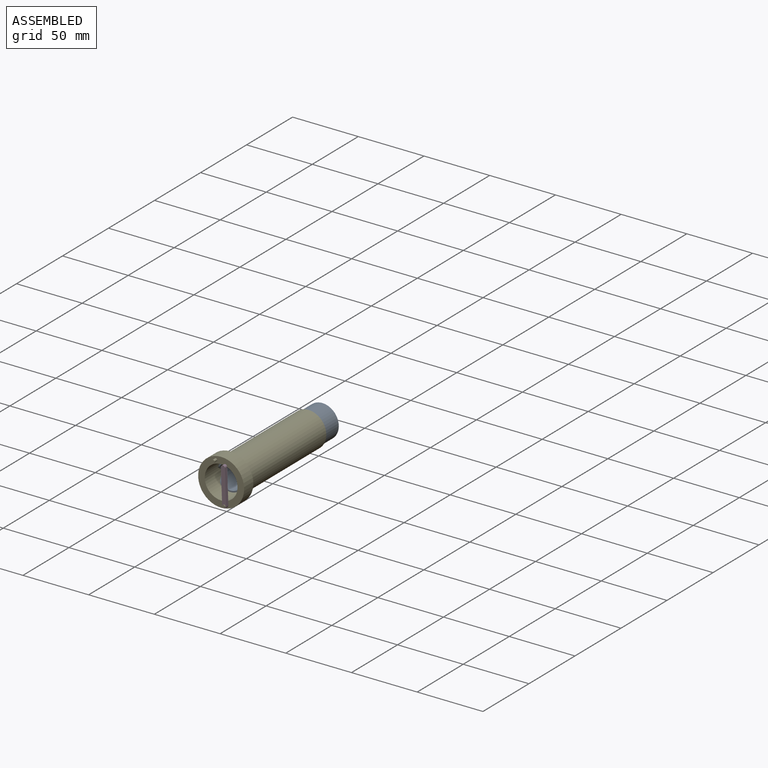
[diagram: assembled view]
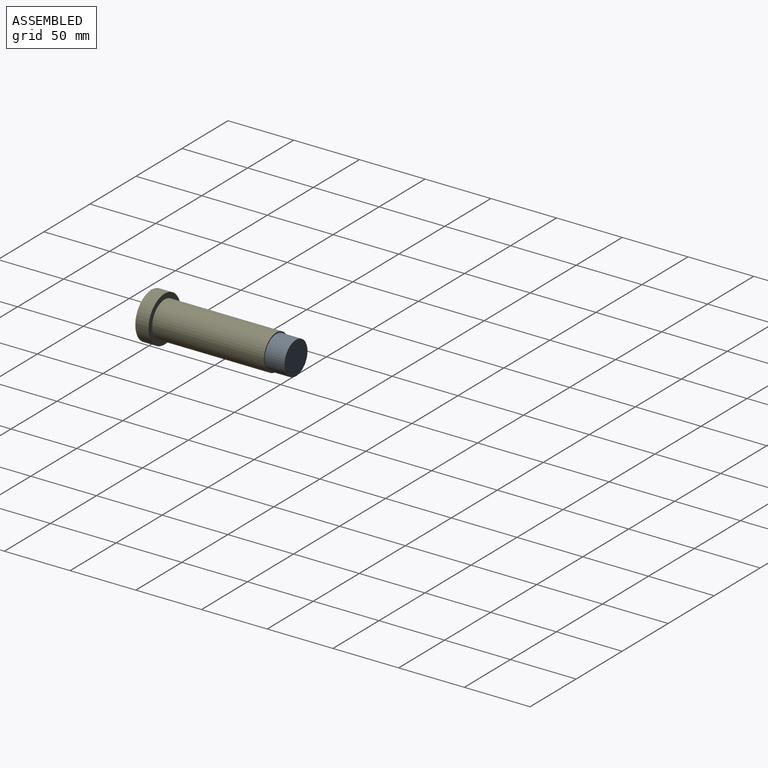
[diagram: assembled view, second angle]
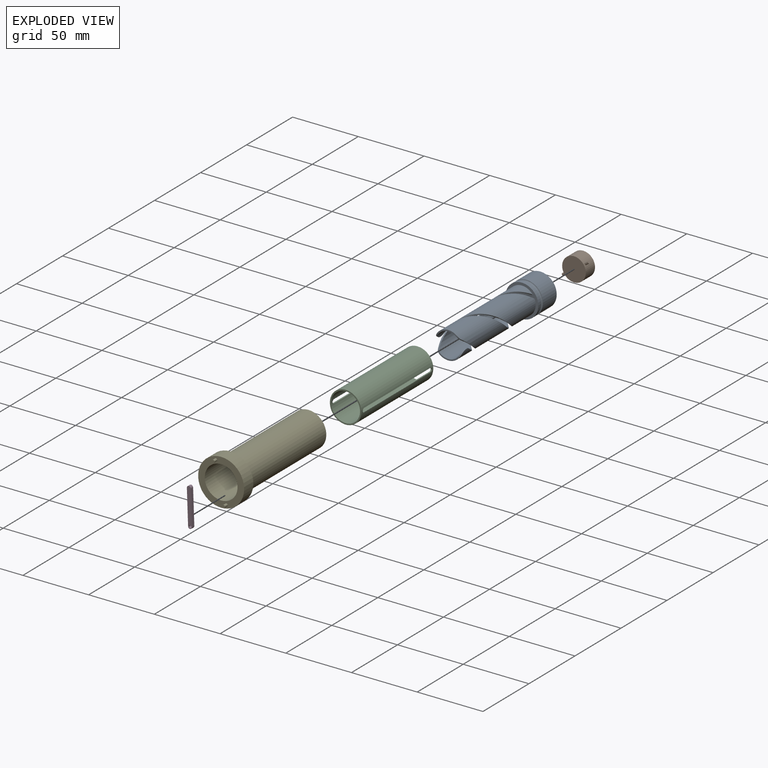
[diagram: exploded view]
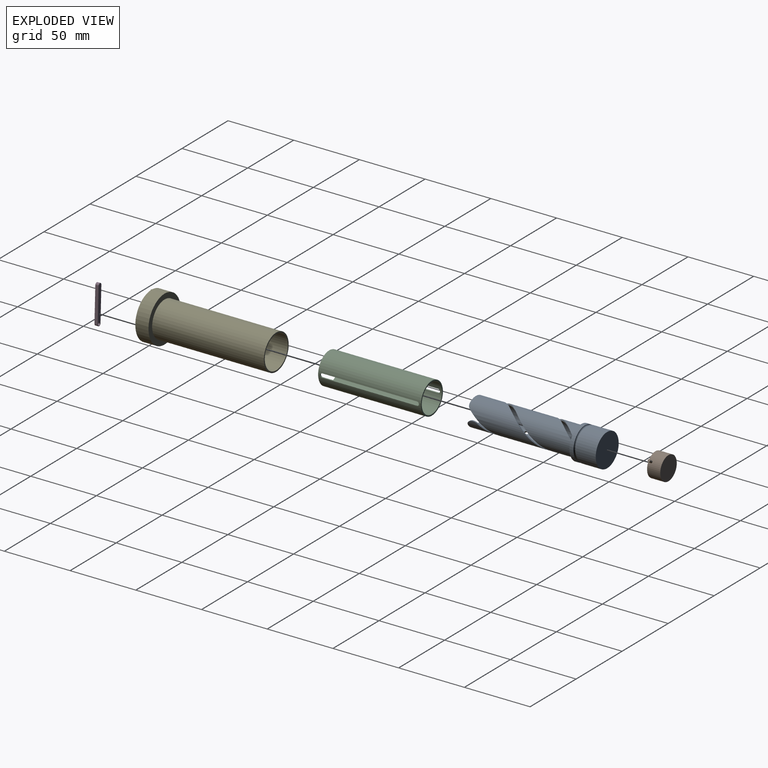
[diagram: exploded view, second angle]
ASSEMBLY  parts=5 mates=4
PART A: 19 faces, bbox 28.6x100.1x28.6 mm
  f0: cylinder r=12.5mm len=25mm, axis (0,1,0), area 235.6mm2, adj f5,f16
  f1: plane 13.69x6.47mm, normal (0,-1,0), area 15mm2, adj f6,f7,f12,f15
  f2: plane 13.69x6.47mm, normal (0,-1,0), area 15mm2, adj f3,f4,f13,f14
  f3: cylinder r=9.5mm len=80mm, axis (0,1,0), area 2121.4mm2, adj f2,f5,f9,f10,f13,f14
  f4: cylinder r=10.5mm len=80mm, axis (0,1,0), area 2371mm2, adj f2,f5,f9,f10,f13,f14
  f5: plane 25x25mm, normal (0,-1,0), area 434.1mm2, adj f0,f3,f4,f6,f7,f8,f9,f10
  f6: cylinder r=9.5mm len=80mm, axis (0,1,0), area 2121.4mm2, adj f1,f5,f8,f11,f12,f15
  f7: cylinder r=10.5mm len=80mm, axis (0,1,0), area 2371mm2, adj f1,f5,f8,f11,f12,f15
  f8: bspline ~80x25.68mm, area 100mm2, adj f5,f6,f7,f15
  f9: bspline ~74.29x25.68mm, area 92.1mm2, adj f3,f4,f5,f14
  f10: bspline ~80x25.68mm, area 100mm2, adj f3,f4,f5,f13
  f11: bspline ~74.29x25.68mm, area 92.1mm2, adj f5,f6,f7,f12
  f12: bspline ~10.95x9.57mm, area 11.5mm2, adj f1,f6,f7,f11
  f13: bspline ~4.33x4.2mm, area 5.3mm2, adj f2,f3,f4,f10
  f14: bspline ~10.95x9.57mm, area 11.5mm2, adj f2,f3,f4,f9
  f15: bspline ~4.33x4.2mm, area 5.3mm2, adj f1,f6,f7,f8
  f16: torus R=12.5mm, axis (0,-1,0), area 234.2mm2, adj f0,f18
  f17: plane 25x25mm, normal (0,1,0), area 490.9mm2, adj f18
  f18: cylinder r=12.5mm len=25mm, axis (0,1,0), area 1178.1mm2, adj f16,f17
PART B: 7 faces, bbox 20.5x10x18 mm
  f0: cylinder r=9mm len=18mm, axis (0,1,0), area 559.8mm2, adj f1,f2,f4,f5
  f1: plane 18x18mm, normal (0,-1,0), area 254.5mm2, adj f0
  f2: plane 18x18mm, normal (0,1,0), area 254.5mm2, adj f0
  f3: cylinder r=10.5mm len=1.9mm, axis (0,1,0), area 2.8mm2, adj f4
  f4: cylinder r=0.95mm len=3.58mm, axis (-0.81,0,-0.59), area 17.9mm2, adj f0,f3
  f5: cylinder r=0.95mm len=3.58mm, axis (-0.81,0,-0.59), area 17.9mm2, adj f0,f6
  f6: cylinder r=10.5mm len=1.9mm, axis (0,1,0), area 2.8mm2, adj f5
PART C: 12 faces, bbox 24x78.2x24 mm
  f0: cylinder r=11mm len=78.15mm, axis (0,1,0), area 4953mm2, adj f2,f3,f4,f5,f6,f7,f8,f9
  f1: cylinder r=12mm len=78.15mm, axis (0,1,0), area 5444.3mm2, adj f2,f3,f4,f5,f6,f7,f8,f9
  f2: plane 24x24mm, normal (0,-1,0), area 72.3mm2, adj f0,f1
  f3: plane 24x24mm, normal (0,1,0), area 72.3mm2, adj f0,f1
  f4: cylinder r=1.5mm len=3mm, axis (1,0,0), area 4.7mm2, adj f0,f1,f5,f7
  f5: plane 72.15x1.01mm, normal (0,0,1), area 72.8mm2, adj f0,f1,f4,f6
  f6: cylinder r=1.5mm len=3mm, axis (1,0,0), area 4.7mm2, adj f0,f1,f5,f7
  f7: plane 72.15x1.01mm, normal (0,0,-1), area 72.8mm2, adj f0,f1,f4,f6
  f8: plane 72.15x1.01mm, normal (0,0,-1), area 72.8mm2, adj f0,f1,f9,f11
  f9: cylinder r=1.5mm len=3mm, axis (1,0,0), area 4.7mm2, adj f0,f1,f8,f10
  f10: plane 72.15x1.01mm, normal (0,0,1), area 72.8mm2, adj f0,f1,f9,f11
  f11: cylinder r=1.5mm len=3mm, axis (1,0,0), area 4.7mm2, adj f0,f1,f8,f10
PART D: 7 faces, bbox 3x2.5x29.3 mm
  f0: cylinder r=1.5mm len=3mm, axis (0,1,0), area 11.8mm2, adj f1,f3,f5,f6
  f1: plane 26.28x2.5mm, normal (-1,0,0), area 65.7mm2, adj f0,f2,f5,f6
  f2: cylinder r=1.5mm len=3mm, axis (0,1,0), area 11.8mm2, adj f1,f3,f5,f6
  f3: plane 26.28x2.5mm, normal (1,0,0), area 65.7mm2, adj f0,f2,f5,f6
  f4: cylinder r=1.1mm len=2.5mm, axis (0,1,0), area 17.3mm2, adj f5,f6
  f5: plane 29.28x3mm, normal (0,-1,0), area 82.1mm2, adj f0,f1,f2,f3,f4
  f6: plane 29.28x3mm, normal (0,1,0), area 82.1mm2, adj f0,f1,f2,f3,f4
PART E: 10 faces, bbox 35x98x35 mm
  f0: cylinder r=12.5mm len=95mm, axis (0,1,0), area 7461.3mm2, adj f1,f5
  f1: plane 27x27mm, normal (0,1,0), area 81.7mm2, adj f0,f2
  f2: cylinder r=13.5mm len=85mm, axis (0,1,0), area 7210mm2, adj f1,f3
  f3: plane 35x35mm, normal (0,1,0), area 389.6mm2, adj f2,f4
  f4: cylinder r=17.5mm len=35mm, axis (0,1,0), area 1099.6mm2, adj f3,f5
  f5: plane 35x35mm, normal (0,-1,0), area 465mm2, adj f0,f4,f6,f8
  f6: cylinder r=1mm len=3mm, axis (0,1,0), area 18.8mm2, adj f5,f7
  f7: plane 2x2mm, normal (0,-1,0), area 3.1mm2, adj f6
  f8: cylinder r=1mm len=3mm, axis (0,1,0), area 18.8mm2, adj f5,f9
  f9: plane 2x2mm, normal (0,-1,0), area 3.1mm2, adj f8
PLACE A rot(axis=(0,-1,0),30.3deg) t=(-53.68,9.26,-22.95)mm
PLACE B rot(axis=(0,1,0),1.1deg) t=(-53.68,16.69,-22.95)mm
PLACE C t=(-53.68,14.26,-22.95)mm
PLACE D rot(axis=(0,-1,0),2deg) t=(-54.2,9.26,-23.1)mm
PLACE E t=(-53.68,9.26,-22.95)mm fixed
MATE revolute E.f8 <-> D.f2  axis (0,-1,0) through (-49.68,-100.74,-37.39)mm
MATE fastened C.f1 <-> E.f0  axis (0,1,0) through (-53.68,-5.74,-22.95)mm
MATE revolute E.f0 <-> A.f16  axis (0,1,0) through (-53.68,-5.74,-22.95)mm
MATE cylindrical B.f0 <-> A.f3  axis (0,1,0) through (-53.68,-8.31,-22.95)mm
